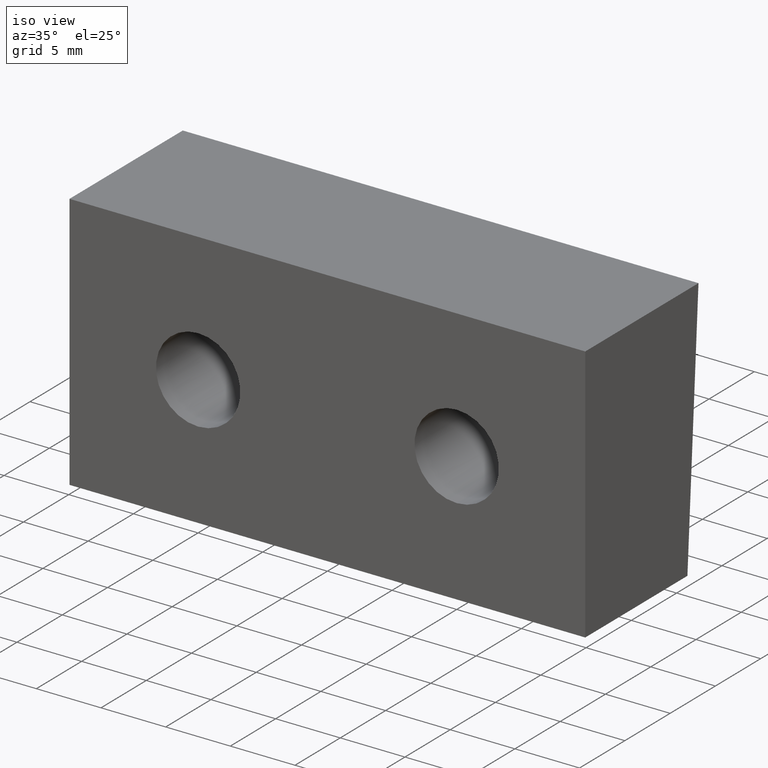
[diagram: clean part render]
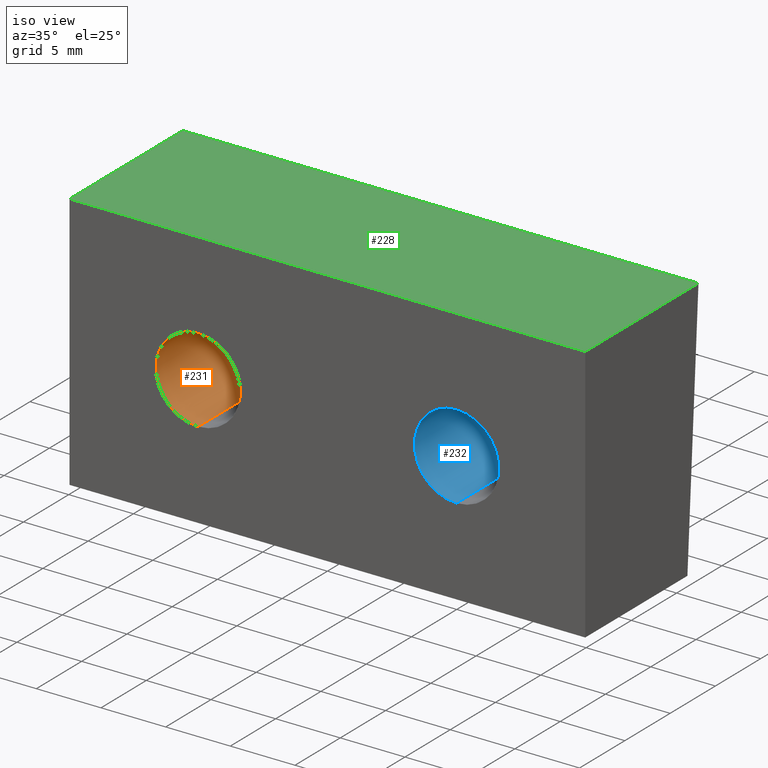
[diagram: same view with three faces highlighted in distinct colors, each labeled with its STEP entity id]
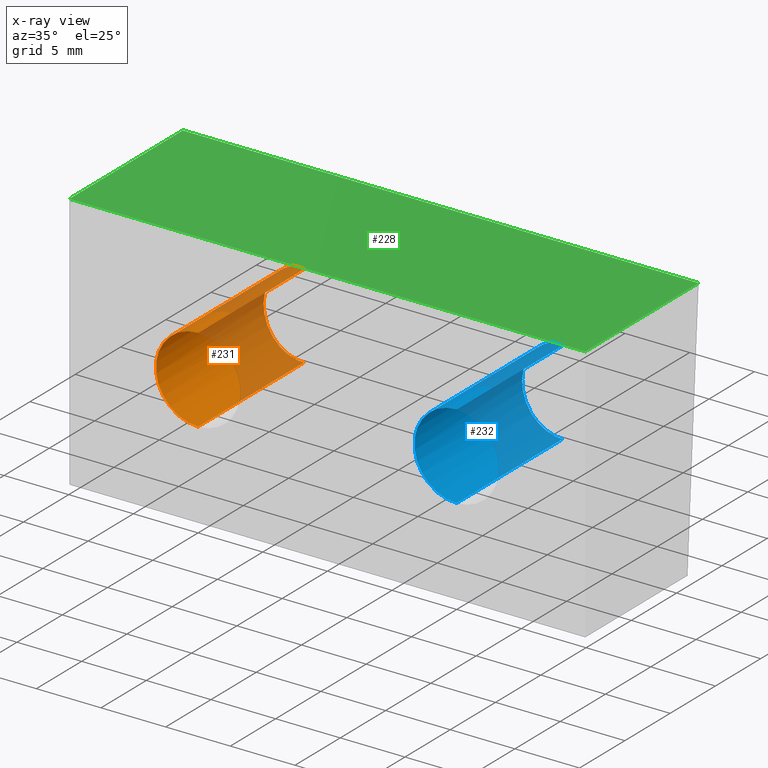
[diagram: x-ray of the same camera — body ghosted, the three highlighted faces saturated]
A machine part, iso view with three faces highlighted in distinct colors.
The next image is the same camera in x-ray (body ghosted, the three faces saturated) — at least one of them is partly hidden behind the body in this view.
Their STEP definitions:

[orange] entity #231 — the highlighted cylindrical surface (partial cylindrical patch) has radius 3.2639 mm, axis along (-0, 1, -0).
#5 = LINE ( 'NONE', #106, #12 ) ;
#10 = CIRCLE ( 'NONE', #273, 0.1285000000000000900 ) ;
#12 = VECTOR ( 'NONE', #108, 39.37007874015748100 ) ;
#65 =( BOUNDED_CURVE ( )  B_SPLINE_CURVE ( 3, ( #133, #143, #142, #141 ),
 .UNSPECIFIED., .F., .T. ) 
 B_SPLINE_CURVE_WITH_KNOTS ( ( 4, 4 ),
 ( 3.141592653589791300, 6.283185307179583600 ),
 .UNSPECIFIED. ) 
 CURVE ( )  GEOMETRIC_REPRESENTATION_ITEM ( )  RATIONAL_B_SPLINE_CURVE ( ( 1.000000000000000000, 0.3333333333333337000, 0.3333333333333337000, 1.000000000000000000 ) ) 
 REPRESENTATION_ITEM ( '' )  );
#73 = CARTESIAN_POINT ( 'NONE',  ( -0.3935000000000000700, -0.3634528855298855300, -0.3934999999999999600 ) ) ;
#74 = CARTESIAN_POINT ( 'NONE',  ( -0.3935000000000000700, 0.8697919056601218800, -0.2649999999999999000 ) ) ;
#85 = DIRECTION ( 'NONE',  ( 0.0000000000000000000, 0.0000000000000000000, 1.000000000000000000 ) ) ;
#92 = VERTEX_POINT ( 'NONE', #221 ) ;
#95 = DIRECTION ( 'NONE',  ( 0.0000000000000000000, -1.000000000000000000, -0.0000000000000000000 ) ) ;
#96 = VERTEX_POINT ( 'NONE', #192 ) ;
#97 = DIRECTION ( 'NONE',  ( 0.0000000000000000000, 0.0000000000000000000, 1.000000000000000000 ) ) ;
#98 = CARTESIAN_POINT ( 'NONE',  ( -0.3935000000000000700, 0.3937007874015748800, -0.3934999999999999600 ) ) ;
#106 = CARTESIAN_POINT ( 'NONE',  ( -0.3935000000000000700, -0.3634528855298855300, -0.2649999999999999000 ) ) ;
#108 = DIRECTION ( 'NONE',  ( -0.0000000000000000000, 1.000000000000000000, -0.0000000000000000000 ) ) ;
#133 = CARTESIAN_POINT ( 'NONE',  ( -0.3935000000000000700, 0.8540731122814473300, -0.5220000000000000200 ) ) ;
#141 = CARTESIAN_POINT ( 'NONE',  ( -0.3935000000000000700, 0.8697919056601218800, -0.2649999999999999000 ) ) ;
#142 = CARTESIAN_POINT ( 'NONE',  ( -0.6504999999999999700, 0.8697919056601217700, -0.2649999999999999600 ) ) ;
#143 = CARTESIAN_POINT ( 'NONE',  ( -0.6504999999999999700, 0.8540731122814472200, -0.5220000000000000200 ) ) ;
#144 = CARTESIAN_POINT ( 'NONE',  ( -0.3935000000000000700, -0.3634528855298855300, -0.5220000000000000200 ) ) ;
#145 = DIRECTION ( 'NONE',  ( -0.0000000000000000000, 1.000000000000000000, -0.0000000000000000000 ) ) ;
#182 = DIRECTION ( 'NONE',  ( -0.0000000000000000000, 1.000000000000000000, -0.0000000000000000000 ) ) ;
#189 = CARTESIAN_POINT ( 'NONE',  ( -0.3935000000000000700, 0.3937007874015748800, -0.2649999999999999000 ) ) ;
#192 = CARTESIAN_POINT ( 'NONE',  ( -0.3935000000000000700, 0.3937007874015748800, -0.5220000000000000200 ) ) ;
#201 = VERTEX_POINT ( 'NONE', #189 ) ;
#219 = VERTEX_POINT ( 'NONE', #74 ) ;
#221 = CARTESIAN_POINT ( 'NONE',  ( -0.3935000000000000700, 0.8540731122814473300, -0.5220000000000000200 ) ) ;
#231 = ADVANCED_FACE ( 'NONE', ( #334 ), #379, .F. ) ;
#241 = EDGE_CURVE ( 'NONE', #96, #92, #299, .T. ) ;
#242 = EDGE_CURVE ( 'NONE', #92, #219, #65, .T. ) ;
#255 = EDGE_CURVE ( 'NONE', #201, #96, #10, .T. ) ;
#259 = EDGE_CURVE ( 'NONE', #201, #219, #5, .T. ) ;
#266 = AXIS2_PLACEMENT_3D ( 'NONE', #73, #182, #85 ) ;
#273 = AXIS2_PLACEMENT_3D ( 'NONE', #98, #95, #97 ) ;
#294 = ORIENTED_EDGE ( 'NONE', *, *, #241, .T. ) ;
#299 = LINE ( 'NONE', #144, #381 ) ;
#329 = ORIENTED_EDGE ( 'NONE', *, *, #242, .T. ) ;
#332 = EDGE_LOOP ( 'NONE', ( #339, #294, #329, #380 ) ) ;
#334 = FACE_OUTER_BOUND ( 'NONE', #332, .T. ) ;
#339 = ORIENTED_EDGE ( 'NONE', *, *, #255, .T. ) ;
#379 = CYLINDRICAL_SURFACE ( 'NONE', #266, 0.1285000000000000900 ) ;
#380 = ORIENTED_EDGE ( 'NONE', *, *, #259, .F. ) ;
#381 = VECTOR ( 'NONE', #145, 39.37007874015748100 ) ;

[blue] entity #232 — the highlighted cylindrical surface (partial cylindrical patch) has radius 3.2639 mm, axis along (-0, 1, -0).
#4 = CIRCLE ( 'NONE', #272, 0.1285000000000000000 ) ;
#9 = VECTOR ( 'NONE', #100, 39.37007874015748100 ) ;
#11 = LINE ( 'NONE', #155, #9 ) ;
#61 = LINE ( 'NONE', #127, #64 ) ;
#64 = VECTOR ( 'NONE', #126, 39.37007874015748100 ) ;
#67 =( BOUNDED_CURVE ( )  B_SPLINE_CURVE ( 3, ( #118, #117, #116, #115 ),
 .UNSPECIFIED., .F., .T. ) 
 B_SPLINE_CURVE_WITH_KNOTS ( ( 4, 4 ),
 ( 3.141592653589791300, 6.283185307179583600 ),
 .UNSPECIFIED. ) 
 CURVE ( )  GEOMETRIC_REPRESENTATION_ITEM ( )  RATIONAL_B_SPLINE_CURVE ( ( 1.000000000000000000, 0.3333333333333337000, 0.3333333333333337000, 1.000000000000000000 ) ) 
 REPRESENTATION_ITEM ( '' )  );
#72 = CARTESIAN_POINT ( 'NONE',  ( 0.3934999999999999100, 0.8697919056601218800, -0.2650000000000000700 ) ) ;
#100 = DIRECTION ( 'NONE',  ( -0.0000000000000000000, 1.000000000000000000, -0.0000000000000000000 ) ) ;
#115 = CARTESIAN_POINT ( 'NONE',  ( 0.3934999999999999100, 0.8697919056601218800, -0.2650000000000000700 ) ) ;
#116 = CARTESIAN_POINT ( 'NONE',  ( 0.1365000000000001800, 0.8697919056601217700, -0.2650000000000000700 ) ) ;
#117 = CARTESIAN_POINT ( 'NONE',  ( 0.1365000000000001500, 0.8540731122814472200, -0.5220000000000000200 ) ) ;
#118 = CARTESIAN_POINT ( 'NONE',  ( 0.3934999999999999100, 0.8540731122814473300, -0.5220000000000000200 ) ) ;
#123 = DIRECTION ( 'NONE',  ( 0.0000000000000000000, -1.000000000000000000, -0.0000000000000000000 ) ) ;
#124 = DIRECTION ( 'NONE',  ( 0.0000000000000000000, 0.0000000000000000000, 1.000000000000000000 ) ) ;
#125 = CARTESIAN_POINT ( 'NONE',  ( 0.3934999999999999100, 0.3937007874015748800, -0.3935000000000000700 ) ) ;
#126 = DIRECTION ( 'NONE',  ( -0.0000000000000000000, 1.000000000000000000, -0.0000000000000000000 ) ) ;
#127 = CARTESIAN_POINT ( 'NONE',  ( 0.3934999999999999100, -0.3634528855298855300, -0.5220000000000000200 ) ) ;
#149 = VERTEX_POINT ( 'NONE', #193 ) ;
#155 = CARTESIAN_POINT ( 'NONE',  ( 0.3934999999999999100, -0.3634528855298855300, -0.2650000000000000700 ) ) ;
#169 = DIRECTION ( 'NONE',  ( 0.0000000000000000000, 0.0000000000000000000, 1.000000000000000000 ) ) ;
#170 = DIRECTION ( 'NONE',  ( -0.0000000000000000000, 1.000000000000000000, -0.0000000000000000000 ) ) ;
#171 = CARTESIAN_POINT ( 'NONE',  ( 0.3934999999999999100, -0.3634528855298855300, -0.3935000000000000700 ) ) ;
#184 = CARTESIAN_POINT ( 'NONE',  ( 0.3934999999999999100, 0.8540731122814473300, -0.5220000000000000200 ) ) ;
#185 = CARTESIAN_POINT ( 'NONE',  ( 0.3934999999999999100, 0.3937007874015748800, -0.2650000000000000700 ) ) ;
#193 = CARTESIAN_POINT ( 'NONE',  ( 0.3934999999999999100, 0.3937007874015748800, -0.5220000000000000200 ) ) ;
#199 = VERTEX_POINT ( 'NONE', #184 ) ;
#200 = VERTEX_POINT ( 'NONE', #185 ) ;
#223 = VERTEX_POINT ( 'NONE', #72 ) ;
#232 = ADVANCED_FACE ( 'NONE', ( #322 ), #309, .F. ) ;
#247 = EDGE_CURVE ( 'NONE', #199, #223, #67, .T. ) ;
#248 = EDGE_CURVE ( 'NONE', #149, #199, #61, .T. ) ;
#249 = EDGE_CURVE ( 'NONE', #200, #149, #4, .T. ) ;
#256 = EDGE_CURVE ( 'NONE', #200, #223, #11, .T. ) ;
#267 = AXIS2_PLACEMENT_3D ( 'NONE', #171, #170, #169 ) ;
#272 = AXIS2_PLACEMENT_3D ( 'NONE', #125, #123, #124 ) ;
#302 = EDGE_LOOP ( 'NONE', ( #328, #338, #369, #376 ) ) ;
#309 = CYLINDRICAL_SURFACE ( 'NONE', #267, 0.1285000000000000000 ) ;
#322 = FACE_OUTER_BOUND ( 'NONE', #302, .T. ) ;
#328 = ORIENTED_EDGE ( 'NONE', *, *, #249, .T. ) ;
#338 = ORIENTED_EDGE ( 'NONE', *, *, #248, .T. ) ;
#369 = ORIENTED_EDGE ( 'NONE', *, *, #247, .T. ) ;
#376 = ORIENTED_EDGE ( 'NONE', *, *, #256, .F. ) ;

[green] entity #228 — the highlighted planar face has unit normal (0, 0, -1).
#15 = VECTOR ( 'NONE', #160, 39.37007874015748100 ) ;
#16 = LINE ( 'NONE', #159, #15 ) ;
#62 = VECTOR ( 'NONE', #129, 39.37007874015748100 ) ;
#77 = DIRECTION ( 'NONE',  ( -1.000000000000000000, -0.0000000000000000000, -0.0000000000000000000 ) ) ;
#83 = CARTESIAN_POINT ( 'NONE',  ( -0.7850000000000001400, 0.8860000000000000100, 0.0000000000000000000 ) ) ;
#84 = DIRECTION ( 'NONE',  ( -1.000000000000000000, -0.0000000000000000000, -0.0000000000000000000 ) ) ;
#88 = CARTESIAN_POINT ( 'NONE',  ( -0.7850000000000001400, 0.3937007874015748300, 0.0000000000000000000 ) ) ;
#129 = DIRECTION ( 'NONE',  ( -1.541674939991119000E-016, 1.000000000000000000, -0.0000000000000000000 ) ) ;
#131 = CARTESIAN_POINT ( 'NONE',  ( 0.7849999999999999200, 0.8860000000000000100, 0.0000000000000000000 ) ) ;
#154 = VERTEX_POINT ( 'NONE', #183 ) ;
#159 = CARTESIAN_POINT ( 'NONE',  ( -0.7850000000000001400, -9.613159877505663000E-017, 0.0000000000000000000 ) ) ;
#160 = DIRECTION ( 'NONE',  ( -0.0000000000000000000, -1.000000000000000000, -0.0000000000000000000 ) ) ;
#164 = PLANE ( 'NONE',  #263 ) ;
#165 = CARTESIAN_POINT ( 'NONE',  ( 0.7850000000000001400, 0.3937007874015748300, 0.0000000000000000000 ) ) ;
#166 = DIRECTION ( 'NONE',  ( -1.000000000000000000, 0.0000000000000000000, -0.0000000000000000000 ) ) ;
#177 = DIRECTION ( 'NONE',  ( 0.0000000000000000000, 0.0000000000000000000, -1.000000000000000000 ) ) ;
#183 = CARTESIAN_POINT ( 'NONE',  ( 0.7849999999999999200, 0.8860000000000000100, 0.0000000000000000000 ) ) ;
#186 = CARTESIAN_POINT ( 'NONE',  ( -0.7850000000000001400, 0.3937007874015748300, 0.0000000000000000000 ) ) ;
#190 = CARTESIAN_POINT ( 'NONE',  ( -0.7850000000000001400, 0.8860000000000000100, 0.0000000000000000000 ) ) ;
#198 = VERTEX_POINT ( 'NONE', #186 ) ;
#209 = VERTEX_POINT ( 'NONE', #190 ) ;
#211 = VERTEX_POINT ( 'NONE', #165 ) ;
#222 = CARTESIAN_POINT ( 'NONE',  ( -0.7850000000000001400, 2.632903660718108000E-017, 0.0000000000000000000 ) ) ;
#228 = ADVANCED_FACE ( 'NONE', ( #341 ), #164, .F. ) ;
#236 = EDGE_CURVE ( 'NONE', #211, #198, #383, .T. ) ;
#237 = EDGE_CURVE ( 'NONE', #154, #209, #318, .T. ) ;
#246 = EDGE_CURVE ( 'NONE', #211, #154, #330, .T. ) ;
#253 = EDGE_CURVE ( 'NONE', #209, #198, #16, .T. ) ;
#263 = AXIS2_PLACEMENT_3D ( 'NONE', #222, #177, #166 ) ;
#317 = ORIENTED_EDGE ( 'NONE', *, *, #237, .T. ) ;
#318 = LINE ( 'NONE', #83, #357 ) ;
#330 = LINE ( 'NONE', #131, #62 ) ;
#333 = ORIENTED_EDGE ( 'NONE', *, *, #253, .T. ) ;
#341 = FACE_OUTER_BOUND ( 'NONE', #363, .T. ) ;
#357 = VECTOR ( 'NONE', #84, 39.37007874015748100 ) ;
#358 = ORIENTED_EDGE ( 'NONE', *, *, #236, .F. ) ;
#363 = EDGE_LOOP ( 'NONE', ( #333, #358, #365, #317 ) ) ;
#365 = ORIENTED_EDGE ( 'NONE', *, *, #246, .T. ) ;
#383 = LINE ( 'NONE', #88, #384 ) ;
#384 = VECTOR ( 'NONE', #77, 39.37007874015748100 ) ;